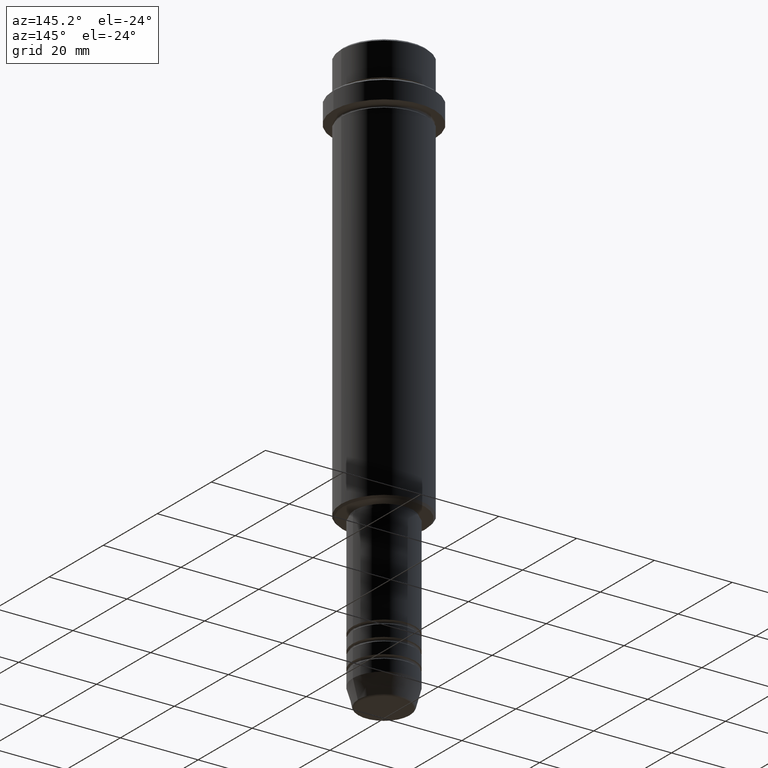
[diagram: clean part render]
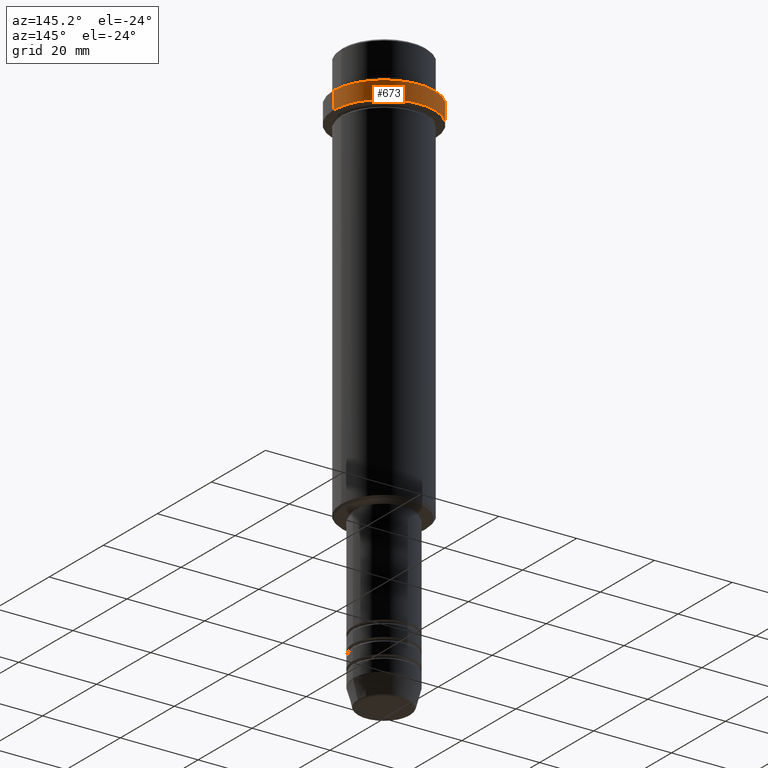
[diagram: same view with one face highlighted and labeled with its STEP entity id]
A machine part, auxiliary view. The second image highlights one B-rep face of the part: STEP entity #673.
In plain terms, the highlighted cylindrical surface (partial cylindrical patch) has radius 13 mm, axis along (-0, -0, 1).
Its self-contained STEP definition (entity closure, byte-faithful):
#84 = VECTOR ( 'NONE', #541, 1000.000000000000000 ) ;
#118 = CARTESIAN_POINT ( 'NONE',  ( 13.00000000000000000, 0.000000000000000000, -15.00000000000000178 ) ) ;
#120 = VERTEX_POINT ( 'NONE', #417 ) ;
#138 = EDGE_CURVE ( 'NONE', #249, #120, #1163, .T. ) ;
#160 = VERTEX_POINT ( 'NONE', #1307 ) ;
#164 = EDGE_CURVE ( 'NONE', #604, #249, #407, .T. ) ;
#179 = CARTESIAN_POINT ( 'NONE',  ( -13.00000000000000000, 1.592040838891559095E-15, -15.00000000000000178 ) ) ;
#249 = VERTEX_POINT ( 'NONE', #179 ) ;
#254 = DIRECTION ( 'NONE',  ( 1.000000000000000000, 0.000000000000000000, 0.000000000000000000 ) ) ;
#271 = DIRECTION ( 'NONE',  ( -0.000000000000000000, -0.000000000000000000, 1.000000000000000000 ) ) ;
#332 = CARTESIAN_POINT ( 'NONE',  ( 13.00000000000000000, 0.000000000000000000, 0.000000000000000000 ) ) ;
#338 = CIRCLE ( 'NONE', #737, 13.00000000000000000 ) ;
#364 = CARTESIAN_POINT ( 'NONE',  ( 0.000000000000000000, 0.000000000000000000, -10.49999999999999289 ) ) ;
#369 = AXIS2_PLACEMENT_3D ( 'NONE', #708, #271, #486 ) ;
#407 = CIRCLE ( 'NONE', #1203, 13.00000000000000000 ) ;
#417 = CARTESIAN_POINT ( 'NONE',  ( -13.00000000000000000, 1.592040838891559095E-15, -10.49999999999999289 ) ) ;
#457 = ORIENTED_EDGE ( 'NONE', *, *, #1281, .F. ) ;
#486 = DIRECTION ( 'NONE',  ( 1.000000000000000000, 0.000000000000000000, 0.000000000000000000 ) ) ;
#515 = EDGE_LOOP ( 'NONE', ( #1306, #1069, #1165, #457 ) ) ;
#541 = DIRECTION ( 'NONE',  ( -0.000000000000000000, -0.000000000000000000, 1.000000000000000000 ) ) ;
#546 = DIRECTION ( 'NONE',  ( -0.000000000000000000, -0.000000000000000000, 1.000000000000000000 ) ) ;
#565 = VECTOR ( 'NONE', #546, 1000.000000000000000 ) ;
#604 = VERTEX_POINT ( 'NONE', #118 ) ;
#607 = CYLINDRICAL_SURFACE ( 'NONE', #369, 13.00000000000000000 ) ;
#623 = CARTESIAN_POINT ( 'NONE',  ( -13.00000000000000000, 1.592040838891559095E-15, 0.000000000000000000 ) ) ;
#673 = ADVANCED_FACE ( 'NONE', ( #798 ), #607, .T. ) ;
#708 = CARTESIAN_POINT ( 'NONE',  ( 0.000000000000000000, 0.000000000000000000, 0.000000000000000000 ) ) ;
#729 = CARTESIAN_POINT ( 'NONE',  ( 0.000000000000000000, 0.000000000000000000, -15.00000000000000178 ) ) ;
#737 = AXIS2_PLACEMENT_3D ( 'NONE', #364, #1216, #254 ) ;
#798 = FACE_OUTER_BOUND ( 'NONE', #515, .T. ) ;
#950 = EDGE_CURVE ( 'NONE', #120, #160, #338, .T. ) ;
#1059 = DIRECTION ( 'NONE',  ( -0.000000000000000000, -0.000000000000000000, 1.000000000000000000 ) ) ;
#1069 = ORIENTED_EDGE ( 'NONE', *, *, #138, .T. ) ;
#1163 = LINE ( 'NONE', #623, #565 ) ;
#1165 = ORIENTED_EDGE ( 'NONE', *, *, #950, .T. ) ;
#1181 = LINE ( 'NONE', #332, #84 ) ;
#1203 = AXIS2_PLACEMENT_3D ( 'NONE', #729, #1059, #1410 ) ;
#1216 = DIRECTION ( 'NONE',  ( 0.000000000000000000, 0.000000000000000000, -1.000000000000000000 ) ) ;
#1281 = EDGE_CURVE ( 'NONE', #604, #160, #1181, .T. ) ;
#1306 = ORIENTED_EDGE ( 'NONE', *, *, #164, .T. ) ;
#1307 = CARTESIAN_POINT ( 'NONE',  ( 13.00000000000000000, 0.000000000000000000, -10.49999999999999289 ) ) ;
#1410 = DIRECTION ( 'NONE',  ( 1.000000000000000000, 0.000000000000000000, 0.000000000000000000 ) ) ;